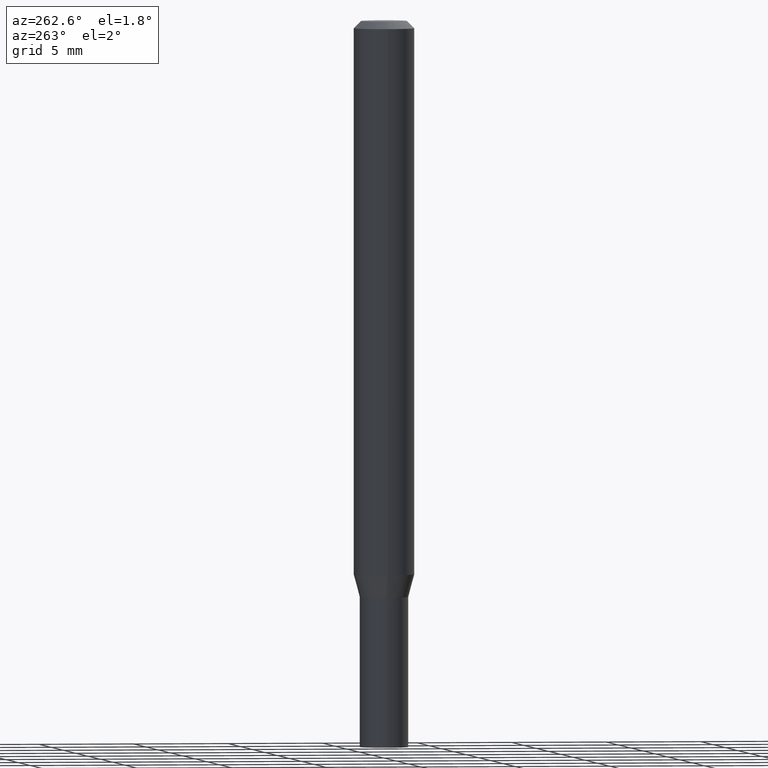
[diagram: clean part render]
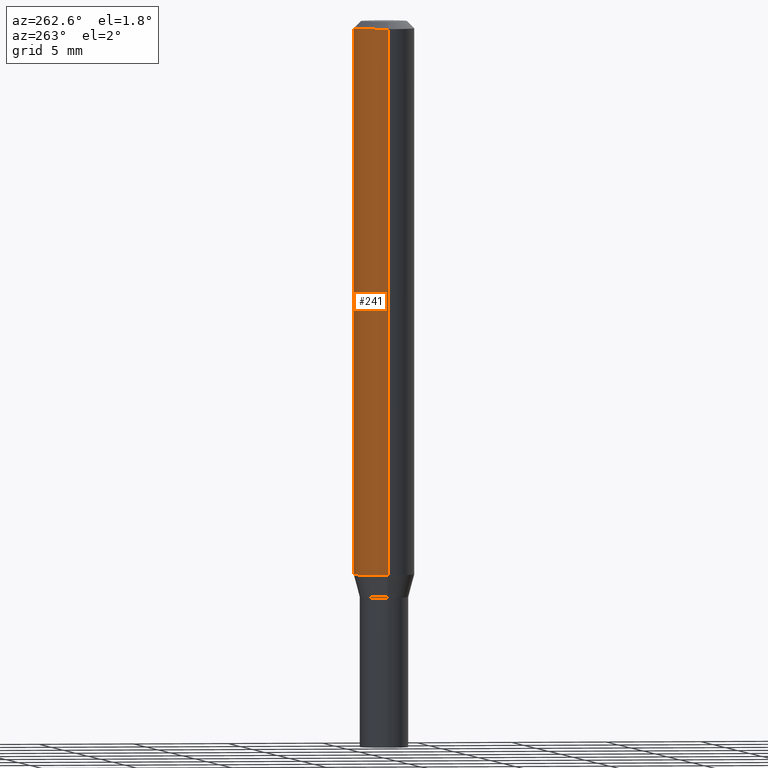
[diagram: same view with one face highlighted and labeled with its STEP entity id]
A machine part, auxiliary view. The second image highlights one B-rep face of the part: STEP entity #241.
In plain terms, the highlighted cylindrical surface (edge-blend (fillet) strip) has radius 1.5875 mm, axis along (-0, 0, 1).
Its self-contained STEP definition (entity closure, byte-faithful):
#16 = AXIS2_PLACEMENT_3D ( 'NONE', #216, #361, #289 ) ;
#22 = ORIENTED_EDGE ( 'NONE', *, *, #91, .F. ) ;
#39 = LINE ( 'NONE', #187, #53 ) ;
#53 = VECTOR ( 'NONE', #179, 39.37007874015748143 ) ;
#76 = CARTESIAN_POINT ( 'NONE',  ( 0.000000000000000000, 0.000000000000000000, 0.000000000000000000 ) ) ;
#78 = VERTEX_POINT ( 'NONE', #434 ) ;
#91 = EDGE_CURVE ( 'NONE', #78, #200, #39, .T. ) ;
#108 = EDGE_CURVE ( 'NONE', #78, #152, #429, .T. ) ;
#111 = FACE_OUTER_BOUND ( 'NONE', #221, .T. ) ;
#123 = CARTESIAN_POINT ( 'NONE',  ( 3.668203209277705088E-31, -5.237222008264718399E-17, -0.01499999999999999944 ) ) ;
#139 = EDGE_CURVE ( 'NONE', #152, #355, #181, .T. ) ;
#152 = VERTEX_POINT ( 'NONE', #184 ) ;
#179 = DIRECTION ( 'NONE',  ( -2.445468806185136877E-29, 3.491481338843145188E-15, 1.000000000000000000 ) ) ;
#181 = LINE ( 'NONE', #400, #334 ) ;
#183 = AXIS2_PLACEMENT_3D ( 'NONE', #76, #224, #370 ) ;
#184 = CARTESIAN_POINT ( 'NONE',  ( -0.06250000000000000000, -3.547893761495267568E-15, -1.143349364905389631 ) ) ;
#187 = CARTESIAN_POINT ( 'NONE',  ( 0.06250000000000000000, -4.364351673553916694E-16, 3.047610484872459871E-30 ) ) ;
#200 = VERTEX_POINT ( 'NONE', #332 ) ;
#216 = CARTESIAN_POINT ( 'NONE',  ( 2.796025206447717260E-29, -3.991982971345330579E-15, -1.143349364905389631 ) ) ;
#221 = EDGE_LOOP ( 'NONE', ( #457, #234, #394, #22 ) ) ;
#223 = DIRECTION ( 'NONE',  ( -2.445468806185136877E-29, 3.491481338843145188E-15, 1.000000000000000000 ) ) ;
#224 = DIRECTION ( 'NONE',  ( -2.445468806185136597E-29, 3.491481338843145583E-15, 1.000000000000000000 ) ) ;
#234 = ORIENTED_EDGE ( 'NONE', *, *, #139, .T. ) ;
#241 = ADVANCED_FACE ( 'NONE', ( #111 ), #406, .T. ) ;
#243 = AXIS2_PLACEMENT_3D ( 'NONE', #123, #337, #375 ) ;
#259 = EDGE_CURVE ( 'NONE', #200, #355, #440, .T. ) ;
#289 = DIRECTION ( 'NONE',  ( 1.000000000000000000, -6.982962677686270655E-15, 0.000000000000000000 ) ) ;
#301 = CARTESIAN_POINT ( 'NONE',  ( -0.06250000000000000000, -1.578088385863926213E-15, -0.01499999999999999944 ) ) ;
#332 = CARTESIAN_POINT ( 'NONE',  ( 0.06250000000000000000, -4.888073874380388472E-16, -0.01499999999999999944 ) ) ;
#334 = VECTOR ( 'NONE', #223, 39.37007874015748143 ) ;
#337 = DIRECTION ( 'NONE',  ( -2.445468806185136597E-29, 3.491481338843145583E-15, 1.000000000000000000 ) ) ;
#355 = VERTEX_POINT ( 'NONE', #301 ) ;
#361 = DIRECTION ( 'NONE',  ( -2.445468806185136597E-29, 3.491481338843145583E-15, 1.000000000000000000 ) ) ;
#370 = DIRECTION ( 'NONE',  ( 1.000000000000000000, -6.982962677686266711E-15, 4.876176775795935793E-29 ) ) ;
#375 = DIRECTION ( 'NONE',  ( 1.000000000000000000, -6.982962677686266711E-15, 0.000000000000000000 ) ) ;
#394 = ORIENTED_EDGE ( 'NONE', *, *, #259, .F. ) ;
#400 = CARTESIAN_POINT ( 'NONE',  ( -0.06250000000000000000, 4.440892098500626162E-16, -3.074334431409316114E-30 ) ) ;
#406 = CYLINDRICAL_SURFACE ( 'NONE', #183, 0.06250000000000000000 ) ;
#429 = CIRCLE ( 'NONE', #16, 0.06250000000000000000 ) ;
#434 = CARTESIAN_POINT ( 'NONE',  ( 0.06250000000000000000, -4.428418138700722248E-15, -1.143349364905389631 ) ) ;
#440 = CIRCLE ( 'NONE', #243, 0.06250000000000000000 ) ;
#457 = ORIENTED_EDGE ( 'NONE', *, *, #108, .T. ) ;